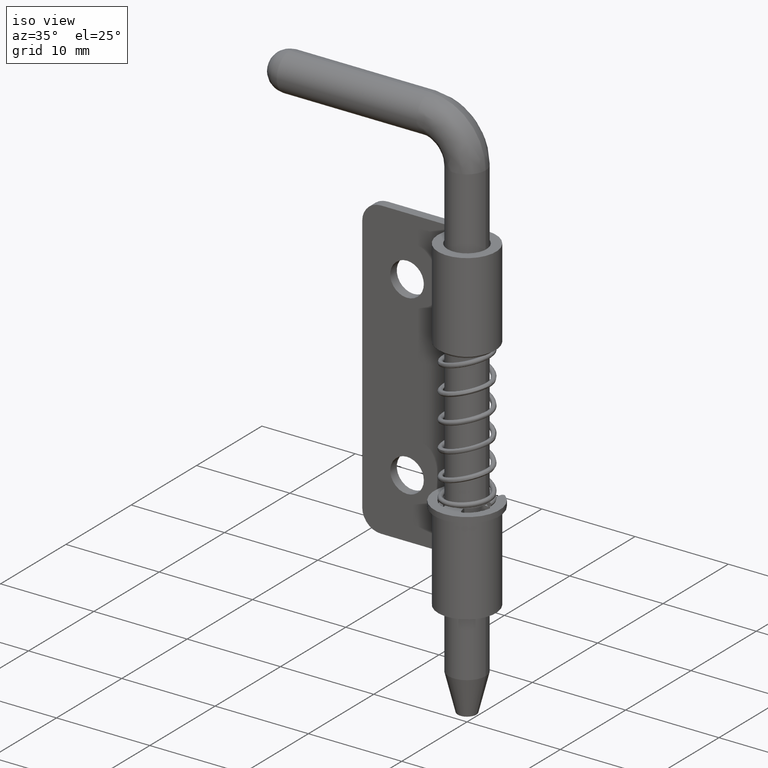
[diagram: clean part render]
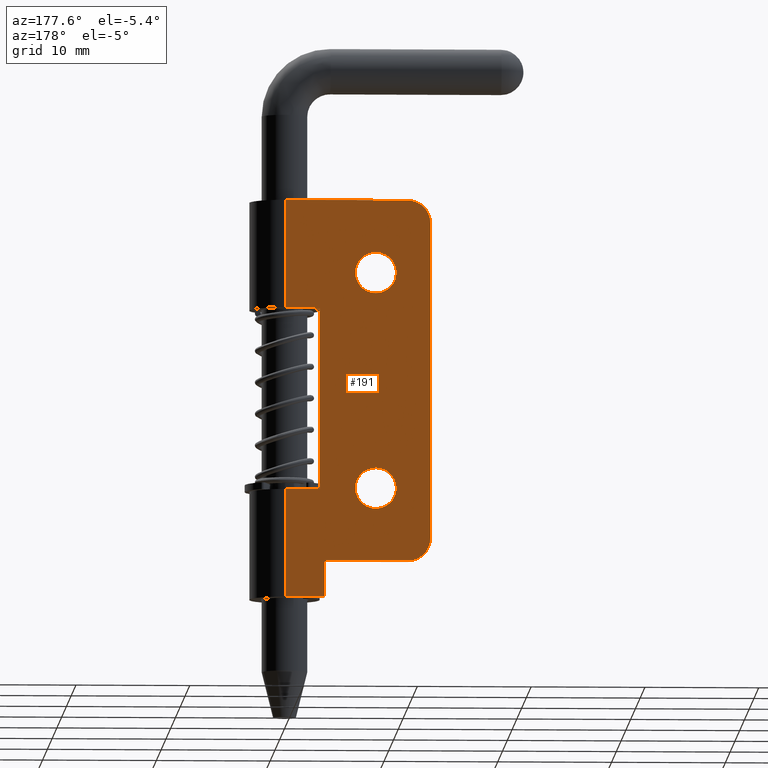
[diagram: tour spotlight — one face highlighted and labeled with its STEP entity id]
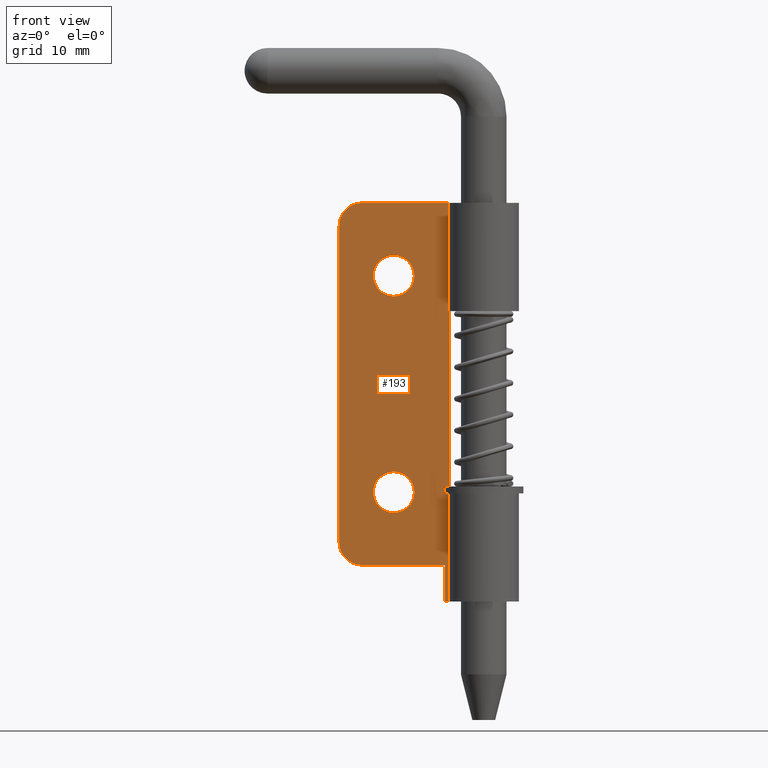
[diagram: tour spotlight — one face highlighted and labeled with its STEP entity id]
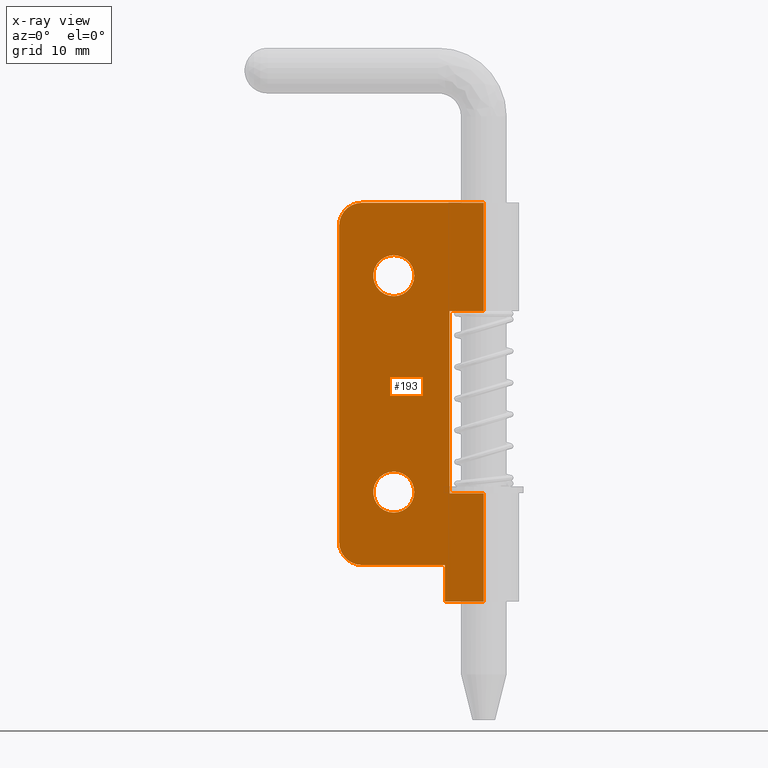
[diagram: x-ray of the same camera — body ghosted, this tour face saturated]
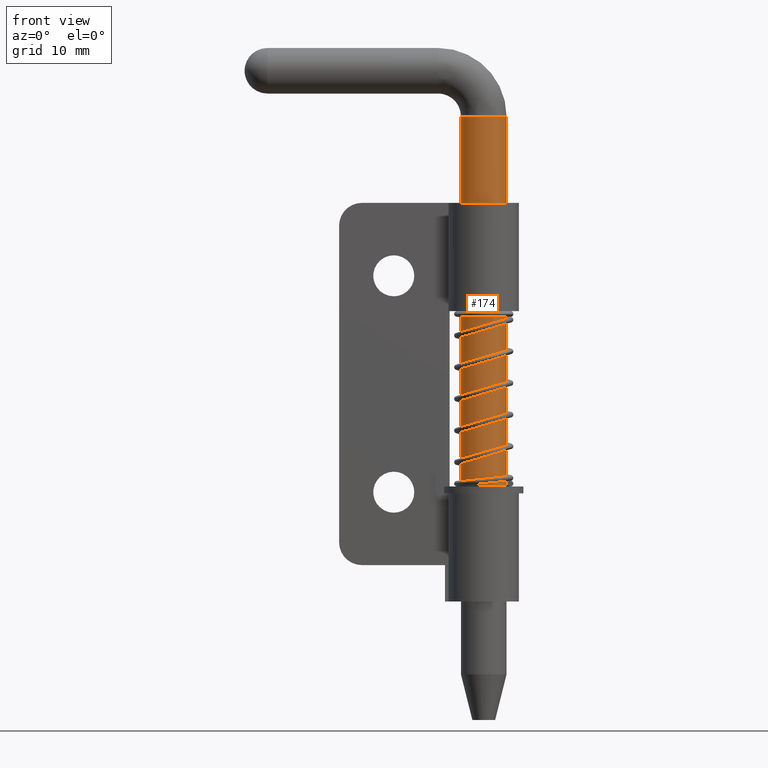
[diagram: tour spotlight — one face highlighted and labeled with its STEP entity id]
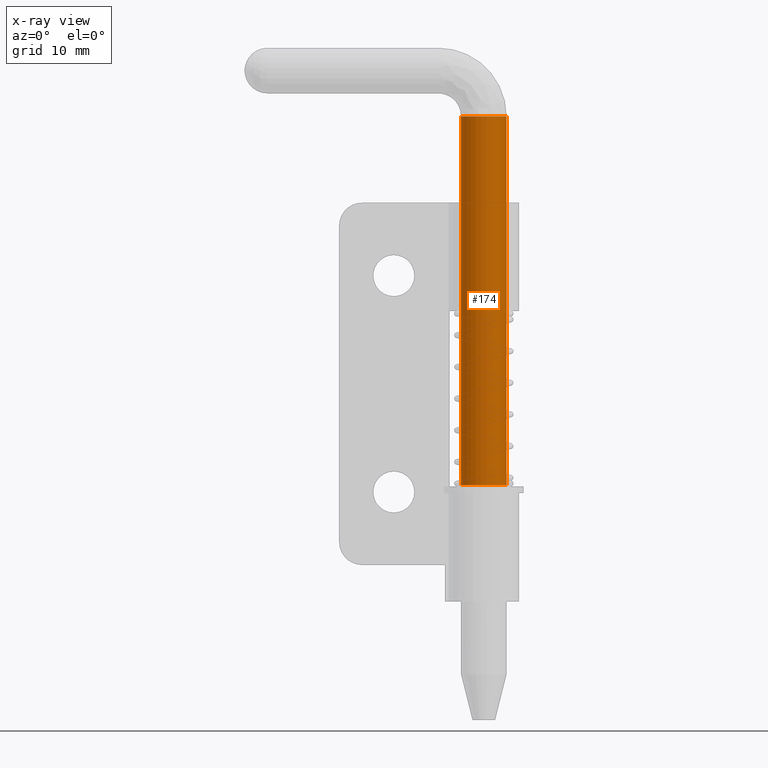
[diagram: x-ray of the same camera — body ghosted, this tour face saturated]
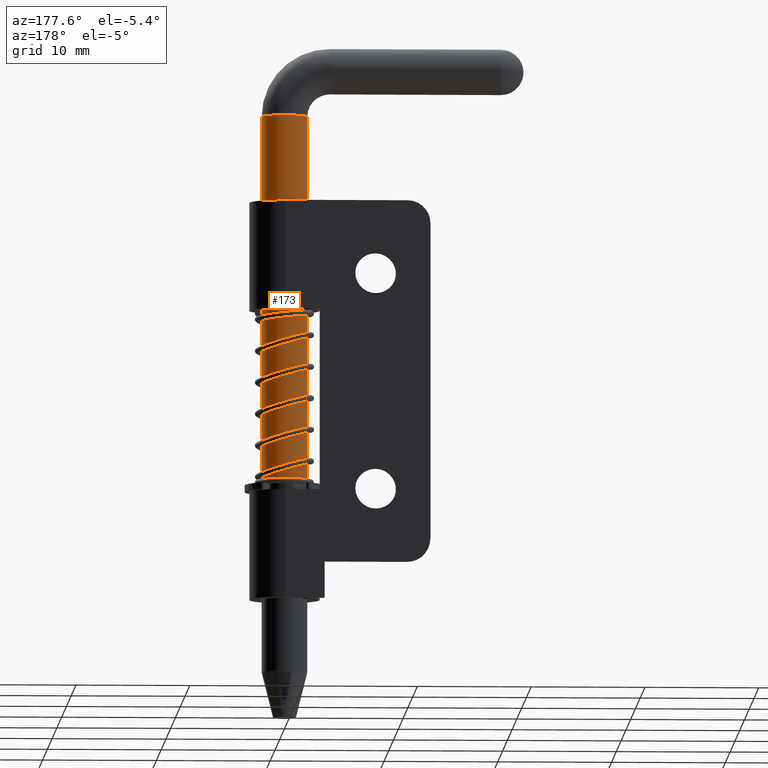
[diagram: tour spotlight — one face highlighted and labeled with its STEP entity id]
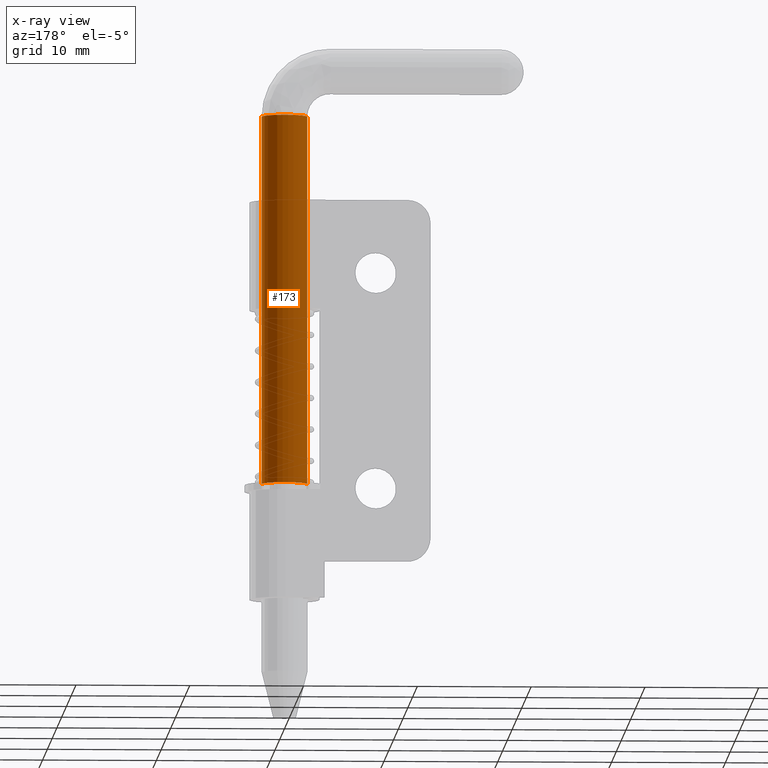
[diagram: x-ray of the same camera — body ghosted, this tour face saturated]
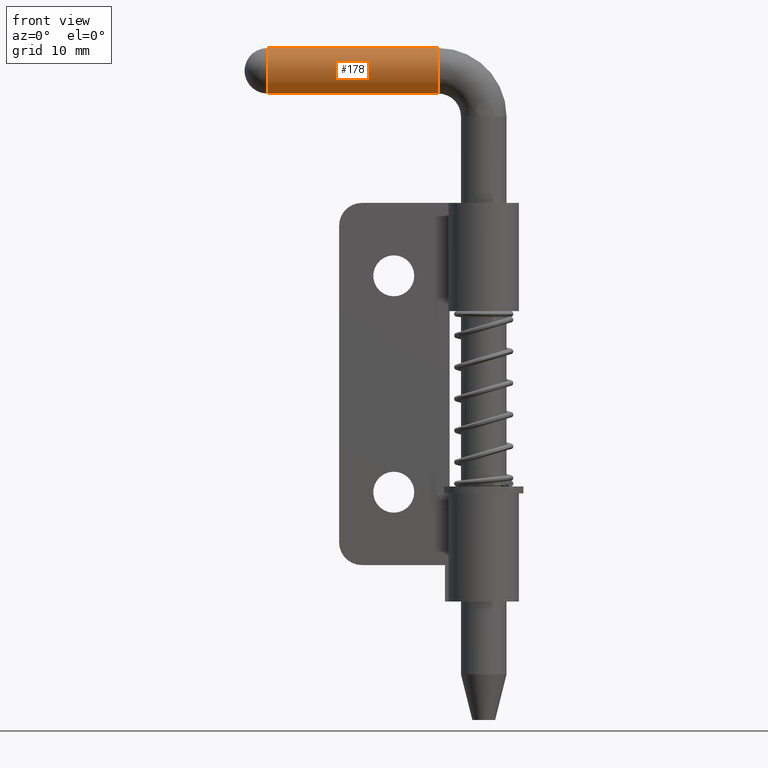
[diagram: tour spotlight — one face highlighted and labeled with its STEP entity id]
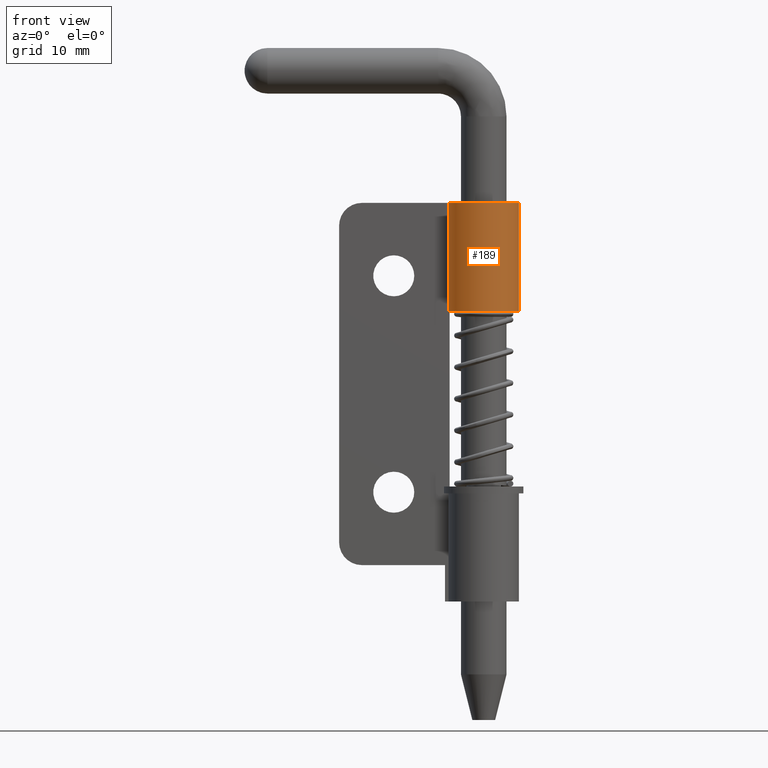
[diagram: tour spotlight — one face highlighted and labeled with its STEP entity id]
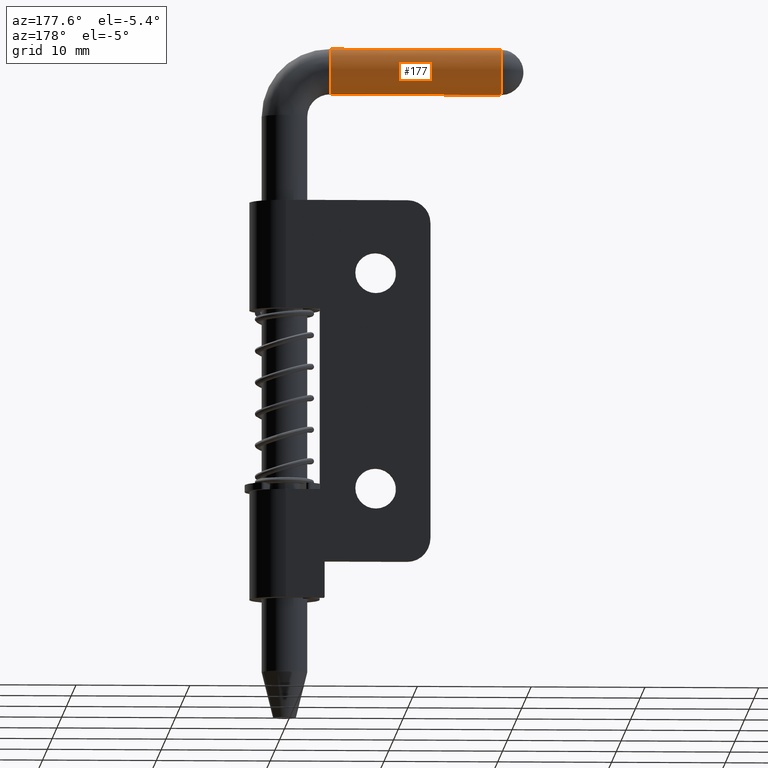
[diagram: tour spotlight — one face highlighted and labeled with its STEP entity id]
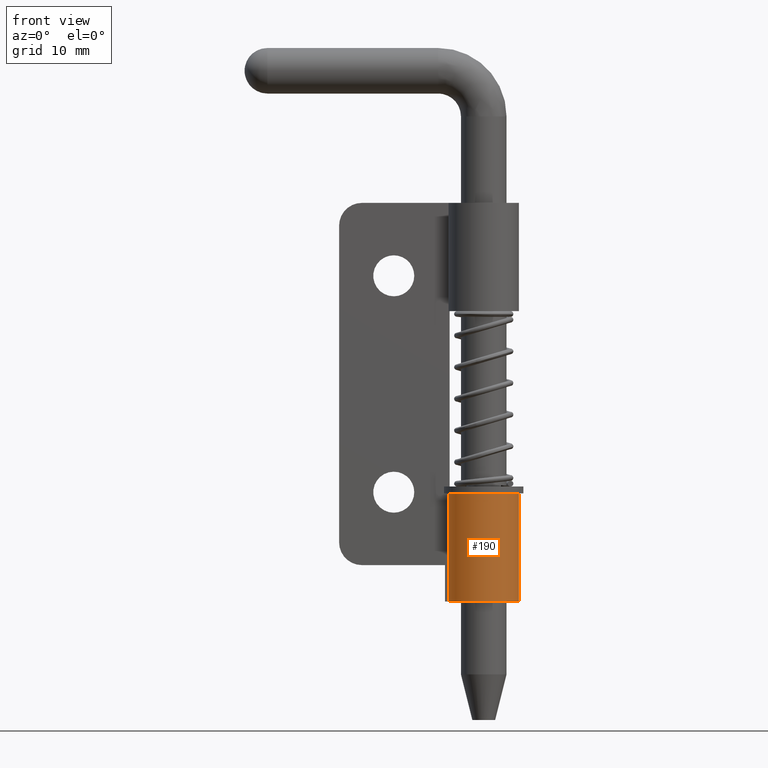
[diagram: tour spotlight — one face highlighted and labeled with its STEP entity id]
A machine part: a face-by-face anatomy tour. The part has 88 B-rep faces; the first image is the clean iso view, then the 8 largest visible faces are spotlighted one at a time (largest first), each with its STEP entity span.

Face 1 — auxiliary view, entity #191. In plain terms, the highlighted planar face has unit normal (0, -1, 0).
Definition (entity closure, byte-faithful):
#191=ADVANCED_FACE('',(#659,#660,#661),#658,.F.);
#658=PLANE('',#1400);
#659=FACE_OUTER_BOUND('',#1401,.T.);
#660=FACE_BOUND('',#1402,.T.);
#661=FACE_BOUND('',#1403,.T.);
#1397=CARTESIAN_POINT('',(-1.39700000000E+01,3.09999999991E+00,-3.50000000001E+00));
#1398=DIRECTION('',(2.96859677041E-12,-1.00000000000E+00,0.00000000000E+00));
#1399=DIRECTION('',(1.00000000000E+00,2.96859677041E-12,0.00000000000E+00));
#1400=AXIS2_PLACEMENT_3D('',#1397,#1398,#1399);
#1401=EDGE_LOOP('',(#3317,#3318,#3319,#3320,#3321,#3322,#3323,#3324,#3325,#3326,#3327,#3328));
#1402=EDGE_LOOP('',(#3329,#3330,#3331));
#1403=EDGE_LOOP('',(#3332,#3333,#3334));
#3317=ORIENTED_EDGE('',*,*,#3662,.T.);
#3318=ORIENTED_EDGE('',*,*,#3663,.T.);
#3319=ORIENTED_EDGE('',*,*,#3664,.F.);
#3320=ORIENTED_EDGE('',*,*,#3665,.T.);
#3321=ORIENTED_EDGE('',*,*,#3666,.F.);
#3322=ORIENTED_EDGE('',*,*,#3657,.T.);
#3323=ORIENTED_EDGE('',*,*,#3667,.T.);
#3324=ORIENTED_EDGE('',*,*,#3668,.T.);
#3325=ORIENTED_EDGE('',*,*,#3669,.T.);
#3326=ORIENTED_EDGE('',*,*,#3659,.T.);
#3327=ORIENTED_EDGE('',*,*,#3670,.T.);
#3328=ORIENTED_EDGE('',*,*,#3671,.T.);
#3329=ORIENTED_EDGE('',*,*,#3672,.T.);
#3330=ORIENTED_EDGE('',*,*,#3673,.T.);
#3331=ORIENTED_EDGE('',*,*,#3674,.T.);
#3332=ORIENTED_EDGE('',*,*,#3675,.T.);
#3333=ORIENTED_EDGE('',*,*,#3676,.T.);
#3334=ORIENTED_EDGE('',*,*,#3677,.T.);
#3657=EDGE_CURVE('',#4513,#4506,#4514,.T.);
#3659=EDGE_CURVE('',#4526,#4527,#4528,.T.);
#3662=EDGE_CURVE('',#4546,#4547,#4548,.T.);
#3663=EDGE_CURVE('',#4547,#4554,#4555,.T.);
#3664=EDGE_CURVE('',#4561,#4554,#4562,.T.);
#3665=EDGE_CURVE('',#4561,#4568,#4569,.T.);
#3666=EDGE_CURVE('',#4513,#4568,#4575,.T.);
#3667=EDGE_CURVE('',#4506,#4581,#4582,.T.);
#3668=EDGE_CURVE('',#4581,#4588,#4589,.T.);
#3669=EDGE_CURVE('',#4588,#4526,#4595,.T.);
#3670=EDGE_CURVE('',#4527,#4601,#4602,.T.);
#3671=EDGE_CURVE('',#4601,#4546,#4608,.T.);
#3672=EDGE_CURVE('',#4614,#4615,#4616,.T.);
#3673=EDGE_CURVE('',#4615,#4622,#4623,.T.);
#3674=EDGE_CURVE('',#4622,#4614,#4629,.T.);
#3675=EDGE_CURVE('',#4635,#4636,#4637,.T.);
#3676=EDGE_CURVE('',#4636,#4643,#4644,.T.);
#3677=EDGE_CURVE('',#4643,#4635,#4650,.T.);
#4506=VERTEX_POINT('',#5692);
#4513=VERTEX_POINT('',#5697);
#4514=LINE('',#5698,#5699);
#4526=VERTEX_POINT('',#5705);
#4527=VERTEX_POINT('',#5706);
#4528=LINE('',#5707,#5708);
#4546=VERTEX_POINT('',#5718);
#4547=VERTEX_POINT('',#5719);
#4548=LINE('',#5720,#5721);
#4554=VERTEX_POINT('',#5723);
#4555=CIRCLE('',#5727,2.00000000000E+00);
#4561=VERTEX_POINT('',#5728);
#4562=LINE('',#5729,#5730);
#4568=VERTEX_POINT('',#5732);
#4569=CIRCLE('',#5736,2.00000000000E+00);
#4575=LINE('',#5737,#5738);
#4581=VERTEX_POINT('',#5740);
#4582=LINE('',#5741,#5742);
#4588=VERTEX_POINT('',#5744);
#4589=LINE('',#5745,#5746);
#4595=LINE('',#5748,#5749);
#4601=VERTEX_POINT('',#5751);
#4602=LINE('',#5752,#5753);
#4608=LINE('',#5755,#5756);
#4614=VERTEX_POINT('',#5758);
#4615=VERTEX_POINT('',#5759);
#4616=CIRCLE('',#5763,1.80000000000E+00);
#4622=VERTEX_POINT('',#5764);
#4623=CIRCLE('',#5768,1.80000000000E+00);
#4629=CIRCLE('',#5772,1.80000000000E+00);
#4635=VERTEX_POINT('',#5773);
#4636=VERTEX_POINT('',#5774);
#4637=CIRCLE('',#5778,1.80000000000E+00);
#4643=VERTEX_POINT('',#5779);
#4644=CIRCLE('',#5783,1.80000000000E+00);
#4650=CIRCLE('',#5787,1.80000000000E+00);
#5692=CARTESIAN_POINT('',(-9.20270804006E-12,3.09999999995E+00,2.55000000000E+01));
#5697=CARTESIAN_POINT('',(-9.20227552440E-12,3.09999999995E+00,3.50000000000E+01));
#5698=CARTESIAN_POINT('',(-9.20227552440E-12,3.09999999995E+00,3.50000000000E+01));
#5699=VECTOR('',#5700,9.49999999999E+00);
#5700=DIRECTION('',(0.00000000000E+00,0.00000000000E+00,-1.00000000000E+00));
#5705=CARTESIAN_POINT('',(-9.20227435919E-12,3.09999999995E+00,9.50000000000E+00));
#5706=CARTESIAN_POINT('',(-9.20227552440E-12,3.09999999995E+00,-8.88178419700E-12));
#5707=CARTESIAN_POINT('',(-9.20227552440E-12,3.09999999995E+00,9.50000000000E+00));
#5708=VECTOR('',#5709,9.50000000001E+00);
#5709=DIRECTION('',(0.00000000000E+00,0.00000000000E+00,-1.00000000000E+00));
#5718=CARTESIAN_POINT('',(-3.40000000004E+00,3.09999999993E+00,3.20000000001E+00));
#5719=CARTESIAN_POINT('',(-1.07000000000E+01,3.09999999992E+00,3.20000000003E+00));
#5720=CARTESIAN_POINT('',(-3.40000000004E+00,3.09999999994E+00,3.20000000001E+00));
#5721=VECTOR('',#5722,7.30000000001E+00);
#5722=DIRECTION('',(-1.00000000000E+00,-2.96858428250E-12,2.84995771274E-12));
#5723=CARTESIAN_POINT('',(-1.27000000000E+01,3.09999999992E+00,5.20000000003E+00));
#5724=CARTESIAN_POINT('',(-1.07000000000E+01,3.09999999992E+00,5.20000000003E+00));
#5725=DIRECTION('',(-2.96859677041E-12,1.00000000000E+00,0.00000000000E+00));
#5726=DIRECTION('',(-1.00000000000E+00,-2.96859677041E-12,-0.00000000000E+00));
#5727=AXIS2_PLACEMENT_3D('',#5724,#5725,#5726);
#5728=CARTESIAN_POINT('',(-1.27000000000E+01,3.09999999992E+00,3.30000000000E+01));
#5729=CARTESIAN_POINT('',(-1.27000000000E+01,3.09999999992E+00,3.30000000000E+01));
#5730=VECTOR('',#5731,2.78000000000E+01);
#5731=DIRECTION('',(0.00000000000E+00,0.00000000000E+00,-1.00000000000E+00));
#5732=CARTESIAN_POINT('',(-1.07000000000E+01,3.09999999992E+00,3.50000000000E+01));
#5733=CARTESIAN_POINT('',(-1.07000000000E+01,3.09999999992E+00,3.30000000000E+01));
#5734=DIRECTION('',(-2.96859677041E-12,1.00000000000E+00,8.96831017168E-44));
#5735=DIRECTION('',(1.83690953073E-16,5.45304370047E-28,1.00000000000E+00));
#5736=AXIS2_PLACEMENT_3D('',#5733,#5734,#5735);
#5737=CARTESIAN_POINT('',(-9.20227552440E-12,3.09999999995E+00,3.50000000000E+01));
#5738=VECTOR('',#5739,1.07000000000E+01);
#5739=DIRECTION('',(-1.00000000000E+00,-2.96859110501E-12,0.00000000000E+00));
#5740=CARTESIAN_POINT('',(-2.99999999998E+00,3.09999999995E+00,2.55000000000E+01));
#5741=CARTESIAN_POINT('',(-9.20330478493E-12,3.09999999995E+00,2.55000000000E+01));
#5742=VECTOR('',#5743,2.99999999997E+00);
#5743=DIRECTION('',(-1.00000000000E+00,0.00000000000E+00,2.85164484621E-12));
#5744=CARTESIAN_POINT('',(-3.00000000002E+00,3.09999999995E+00,9.50000000001E+00));
#5745=CARTESIAN_POINT('',(-2.99999999998E+00,3.09999999995E+00,2.55000000000E+01));
#5746=VECTOR('',#5747,1.60000000000E+01);
#5747=DIRECTION('',(-2.84394729988E-12,0.00000000000E+00,-1.00000000000E+00));
#5748=CARTESIAN_POINT('',(-3.00000000002E+00,3.09999999995E+00,9.50000000001E+00));
#5749=VECTOR('',#5750,3.00000000001E+00);
#5750=DIRECTION('',(1.00000000000E+00,0.00000000000E+00,-2.83743399146E-12));
#5751=CARTESIAN_POINT('',(-3.40000000005E+00,3.09999999994E+00,-8.81072992343E-12));
#5752=CARTESIAN_POINT('',(-9.20227552440E-12,3.09999999995E+00,-8.81072992343E-12));
#5753=VECTOR('',#5754,3.40000000004E+00);
#5754=DIRECTION('',(-1.00000000000E+00,-2.96860575334E-12,0.00000000000E+00));
#5755=CARTESIAN_POINT('',(-3.40000000005E+00,3.09999999994E+00,-8.86757334229E-12));
#5756=VECTOR('',#5757,3.20000000002E+00);
#5757=DIRECTION('',(2.84217094302E-12,0.00000000000E+00,1.00000000000E+00));
#5758=CARTESIAN_POINT('',(-6.09999999999E+00,3.09999999994E+00,9.60000000015E+00));
#5759=CARTESIAN_POINT('',(-7.89999018192E+00,3.09999999993E+00,1.14000000001E+01));
#5760=CARTESIAN_POINT('',(-7.89999999999E+00,3.09999999993E+00,9.60000000015E+00));
#5761=DIRECTION('',(2.96859677041E-12,-1.00000000000E+00,0.00000000000E+00));
#5762=DIRECTION('',(1.00000000000E+00,2.96859677041E-12,-1.22460635382E-16));
#5763=AXIS2_PLACEMENT_3D('',#5760,#5761,#5762);
#5764=CARTESIAN_POINT('',(-7.90018683647E+00,3.09999999993E+00,7.80000000984E+00));
#5765=CARTESIAN_POINT('',(-7.89999999999E+00,3.09999999993E+00,9.60000000015E+00));
#5766=DIRECTION('',(2.96859677041E-12,-1.00000000000E+00,0.00000000000E+00));
#5767=DIRECTION('',(1.00000000000E+00,2.96859677041E-12,-1.22460635382E-16));
#5768=AXIS2_PLACEMENT_3D('',#5765,#5766,#5767);
#5769=CARTESIAN_POINT('',(-7.89999999999E+00,3.09999999993E+00,9.60000000015E+00));
#5770=DIRECTION('',(2.96859677041E-12,-1.00000000000E+00,0.00000000000E+00));
#5771=DIRECTION('',(1.00000000000E+00,2.96859677041E-12,-1.22460635382E-16));
#5772=AXIS2_PLACEMENT_3D('',#5769,#5770,#5771);
#5773=CARTESIAN_POINT('',(-6.09999999996E+00,3.09999999994E+00,2.86000000001E+01));
#5774=CARTESIAN_POINT('',(-7.89999018190E+00,3.09999999993E+00,3.04000000001E+01));
#5775=CARTESIAN_POINT('',(-7.89999999996E+00,3.09999999993E+00,2.86000000001E+01));
#5776=DIRECTION('',(2.96859677041E-12,-1.00000000000E+00,0.00000000000E+00));
#5777=DIRECTION('',(1.00000000000E+00,2.96859677041E-12,-1.22460635382E-16));
#5778=AXIS2_PLACEMENT_3D('',#5775,#5776,#5777);
#5779=CARTESIAN_POINT('',(-7.90018683645E+00,3.09999999993E+00,2.68000000098E+01));
#5780=CARTESIAN_POINT('',(-7.89999999996E+00,3.09999999993E+00,2.86000000001E+01));
#5781=DIRECTION('',(2.96859677041E-12,-1.00000000000E+00,0.00000000000E+00));
#5782=DIRECTION('',(1.00000000000E+00,2.96859677041E-12,-1.22460635382E-16));
#5783=AXIS2_PLACEMENT_3D('',#5780,#5781,#5782);
#5784=CARTESIAN_POINT('',(-7.89999999996E+00,3.09999999993E+00,2.86000000001E+01));
#5785=DIRECTION('',(2.96859677041E-12,-1.00000000000E+00,0.00000000000E+00));
#5786=DIRECTION('',(1.00000000000E+00,2.96859677041E-12,-1.22460635382E-16));
#5787=AXIS2_PLACEMENT_3D('',#5784,#5785,#5786);

Face 2 — front view, entity #193. An x-ray twin of the same camera follows (body ghosted, this face saturated) — the face is partly hidden behind the body. In plain terms, the highlighted planar face has unit normal (-0, 1, 0).
Definition (entity closure, byte-faithful):
#193=ADVANCED_FACE('',(#681,#682,#683),#680,.F.);
#680=PLANE('',#1412);
#681=FACE_OUTER_BOUND('',#1413,.T.);
#682=FACE_BOUND('',#1414,.T.);
#683=FACE_BOUND('',#1415,.T.);
#1409=CARTESIAN_POINT('',(1.27000000000E+00,2.09999999996E+00,-3.50000000001E+00));
#1410=DIRECTION('',(-2.96859677041E-12,1.00000000000E+00,0.00000000000E+00));
#1411=DIRECTION('',(-1.00000000000E+00,-2.96859677041E-12,0.00000000000E+00));
#1412=AXIS2_PLACEMENT_3D('',#1409,#1410,#1411);
#1413=EDGE_LOOP('',(#3339,#3340,#3341,#3342,#3343,#3344,#3345,#3346,#3347,#3348,#3349,#3350));
#1414=EDGE_LOOP('',(#3351,#3352,#3353));
#1415=EDGE_LOOP('',(#3354,#3355,#3356));
#3339=ORIENTED_EDGE('',*,*,#3679,.T.);
#3340=ORIENTED_EDGE('',*,*,#3681,.T.);
#3341=ORIENTED_EDGE('',*,*,#3682,.F.);
#3342=ORIENTED_EDGE('',*,*,#3683,.F.);
#3343=ORIENTED_EDGE('',*,*,#3684,.T.);
#3344=ORIENTED_EDGE('',*,*,#3651,.F.);
#3345=ORIENTED_EDGE('',*,*,#3685,.F.);
#3346=ORIENTED_EDGE('',*,*,#3686,.F.);
#3347=ORIENTED_EDGE('',*,*,#3687,.F.);
#3348=ORIENTED_EDGE('',*,*,#3646,.F.);
#3349=ORIENTED_EDGE('',*,*,#3688,.F.);
#3350=ORIENTED_EDGE('',*,*,#3689,.T.);
#3351=ORIENTED_EDGE('',*,*,#3690,.F.);
#3352=ORIENTED_EDGE('',*,*,#3691,.F.);
#3353=ORIENTED_EDGE('',*,*,#3692,.F.);
#3354=ORIENTED_EDGE('',*,*,#3693,.F.);
#3355=ORIENTED_EDGE('',*,*,#3694,.F.);
#3356=ORIENTED_EDGE('',*,*,#3695,.F.);
#3646=EDGE_CURVE('',#4438,#4439,#4440,.T.);
#3651=EDGE_CURVE('',#4466,#4473,#4474,.T.);
#3679=EDGE_CURVE('',#4663,#4656,#4664,.T.);
#3681=EDGE_CURVE('',#4656,#4676,#4677,.T.);
#3682=EDGE_CURVE('',#4683,#4676,#4684,.T.);
#3683=EDGE_CURVE('',#4690,#4683,#4691,.T.);
#3684=EDGE_CURVE('',#4690,#4473,#4697,.T.);
#3685=EDGE_CURVE('',#4703,#4466,#4704,.T.);
#3686=EDGE_CURVE('',#4710,#4703,#4711,.T.);
#3687=EDGE_CURVE('',#4439,#4710,#4717,.T.);
#3688=EDGE_CURVE('',#4723,#4438,#4724,.T.);
#3689=EDGE_CURVE('',#4723,#4663,#4730,.T.);
#3690=EDGE_CURVE('',#4736,#4737,#4738,.T.);
#3691=EDGE_CURVE('',#4744,#4736,#4745,.T.);
#3692=EDGE_CURVE('',#4737,#4744,#4751,.T.);
#3693=EDGE_CURVE('',#4757,#4758,#4759,.T.);
#3694=EDGE_CURVE('',#4765,#4757,#4766,.T.);
#3695=EDGE_CURVE('',#4758,#4765,#4772,.T.);
#4438=VERTEX_POINT('',#5650);
#4439=VERTEX_POINT('',#5651);
#4440=LINE('',#5652,#5653);
#4466=VERTEX_POINT('',#5668);
#4473=VERTEX_POINT('',#5673);
#4474=LINE('',#5674,#5675);
#4656=VERTEX_POINT('',#5788);
#4663=VERTEX_POINT('',#5792);
#4664=LINE('',#5793,#5794);
#4676=VERTEX_POINT('',#5799);
#4677=CIRCLE('',#5803,2.00000000000E+00);
#4683=VERTEX_POINT('',#5804);
#4684=LINE('',#5805,#5806);
#4690=VERTEX_POINT('',#5808);
#4691=LINE('',#5809,#5810);
#4697=LINE('',#5812,#5813);
#4703=VERTEX_POINT('',#5815);
#4704=LINE('',#5816,#5817);
#4710=VERTEX_POINT('',#5819);
#4711=LINE('',#5820,#5821);
#4717=LINE('',#5823,#5824);
#4723=VERTEX_POINT('',#5826);
#4724=LINE('',#5827,#5828);
#4730=CIRCLE('',#5833,2.00000000000E+00);
#4736=VERTEX_POINT('',#5834);
#4737=VERTEX_POINT('',#5835);
#4738=CIRCLE('',#5839,1.80000000000E+00);
#4744=VERTEX_POINT('',#5840);
#4745=CIRCLE('',#5844,1.80000000000E+00);
#4751=CIRCLE('',#5848,1.80000000000E+00);
#4757=VERTEX_POINT('',#5849);
#4758=VERTEX_POINT('',#5850);
#4759=CIRCLE('',#5854,1.80000000000E+00);
#4765=VERTEX_POINT('',#5855);
#4766=CIRCLE('',#5859,1.80000000000E+00);
#4772=CIRCLE('',#5863,1.80000000000E+00);
#5650=CARTESIAN_POINT('',(-5.91171556152E-12,2.09999999995E+00,3.50000000000E+01));
#5651=CARTESIAN_POINT('',(-5.91193760613E-12,2.09999999995E+00,2.55000000000E+01));
#5652=CARTESIAN_POINT('',(-5.91171556152E-12,2.09999999995E+00,3.50000000000E+01));
#5653=VECTOR('',#5654,9.49999999999E+00);
#5654=DIRECTION('',(0.00000000000E+00,0.00000000000E+00,-1.00000000000E+00));
#5668=CARTESIAN_POINT('',(0.00000000000E+00,2.09999999998E+00,9.50000000001E+00));
#5673=CARTESIAN_POINT('',(-5.91171556152E-12,2.09999999995E+00,-8.88178419700E-12));
#5674=CARTESIAN_POINT('',(-5.91171556152E-12,2.09999999995E+00,9.50000000001E+00));
#5675=VECTOR('',#5676,9.50000000001E+00);
#5676=DIRECTION('',(0.00000000000E+00,0.00000000000E+00,-1.00000000000E+00));
#5788=CARTESIAN_POINT('',(-1.27000000000E+01,2.09999999992E+00,5.20000000003E+00));
#5792=CARTESIAN_POINT('',(-1.27000000000E+01,2.09999999992E+00,3.30000000000E+01));
#5793=CARTESIAN_POINT('',(-1.27000000000E+01,2.09999999992E+00,3.30000000000E+01));
#5794=VECTOR('',#5795,2.78000000000E+01);
#5795=DIRECTION('',(0.00000000000E+00,0.00000000000E+00,-1.00000000000E+00));
#5799=CARTESIAN_POINT('',(-1.07000000000E+01,2.09999999992E+00,3.20000000003E+00));
#5800=CARTESIAN_POINT('',(-1.07000000000E+01,2.09999999992E+00,5.20000000003E+00));
#5801=DIRECTION('',(2.96859677041E-12,-1.00000000000E+00,-0.00000000000E+00));
#5802=DIRECTION('',(1.00000000000E+00,2.96859677041E-12,-0.00000000000E+00));
#5803=AXIS2_PLACEMENT_3D('',#5800,#5801,#5802);
#5804=CARTESIAN_POINT('',(-3.40000000004E+00,2.09999999992E+00,3.20000000001E+00));
#5805=CARTESIAN_POINT('',(-3.40000000004E+00,2.09999999992E+00,3.20000000001E+00));
#5806=VECTOR('',#5807,7.30000000001E+00);
#5807=DIRECTION('',(-1.00000000000E+00,0.00000000000E+00,2.84995771274E-12));
#5808=CARTESIAN_POINT('',(-3.40000000005E+00,2.09999999992E+00,9.69180291577E-12));
#5809=CARTESIAN_POINT('',(-3.40000000005E+00,2.09999999992E+00,9.69180291577E-12));
#5810=VECTOR('',#5811,3.20000000000E+00);
#5811=DIRECTION('',(2.84217094304E-12,0.00000000000E+00,1.00000000000E+00));
#5812=CARTESIAN_POINT('',(-3.40000000005E+00,2.09999999994E+00,-8.81072992343E-12));
#5813=VECTOR('',#5814,3.40000000004E+00);
#5814=DIRECTION('',(1.00000000000E+00,2.96860575334E-12,0.00000000000E+00));
#5815=CARTESIAN_POINT('',(-3.00000000002E+00,2.09999999996E+00,9.50000000001E+00));
#5816=CARTESIAN_POINT('',(-3.00000000002E+00,2.09999999995E+00,9.50000000001E+00));
#5817=VECTOR('',#5818,3.00000000002E+00);
#5818=DIRECTION('',(1.00000000000E+00,2.96873636783E-12,-2.83743399145E-12));
#5819=CARTESIAN_POINT('',(-2.99999999998E+00,2.09999999996E+00,2.55000000000E+01));
#5820=CARTESIAN_POINT('',(-2.99999999998E+00,2.09999999995E+00,2.55000000000E+01));
#5821=VECTOR('',#5822,1.60000000000E+01);
#5822=DIRECTION('',(-2.84394729988E-12,0.00000000000E+00,-1.00000000000E+00));
#5823=CARTESIAN_POINT('',(-5.91171556152E-12,2.09999999995E+00,2.55000000000E+01));
#5824=VECTOR('',#5825,2.99999999997E+00);
#5825=DIRECTION('',(-1.00000000000E+00,-2.96873636788E-12,2.85164484621E-12));
#5826=CARTESIAN_POINT('',(-1.07000000000E+01,2.09999999992E+00,3.50000000000E+01));
#5827=CARTESIAN_POINT('',(-1.07000000000E+01,2.09999999992E+00,3.50000000000E+01));
#5828=VECTOR('',#5829,1.07000000000E+01);
#5829=DIRECTION('',(1.00000000000E+00,2.96859110501E-12,0.00000000000E+00));
#5830=CARTESIAN_POINT('',(-1.07000000000E+01,2.09999999992E+00,3.30000000000E+01));
#5831=DIRECTION('',(2.96859677041E-12,-1.00000000000E+00,-0.00000000000E+00));
#5832=DIRECTION('',(1.00000000000E+00,2.96859677041E-12,-0.00000000000E+00));
#5833=AXIS2_PLACEMENT_3D('',#5830,#5831,#5832);
#5834=CARTESIAN_POINT('',(-7.90018683647E+00,2.09999999992E+00,7.80000000984E+00));
#5835=CARTESIAN_POINT('',(-6.09999999999E+00,2.09999999992E+00,9.60000000015E+00));
#5836=CARTESIAN_POINT('',(-7.89999999999E+00,2.09999999992E+00,9.60000000015E+00));
#5837=DIRECTION('',(0.00000000000E+00,-1.00000000000E+00,0.00000000000E+00));
#5838=DIRECTION('',(1.00000000000E+00,0.00000000000E+00,-1.22460635382E-16));
#5839=AXIS2_PLACEMENT_3D('',#5836,#5837,#5838);
#5840=CARTESIAN_POINT('',(-7.89999018192E+00,2.09999999992E+00,1.14000000001E+01));
#5841=CARTESIAN_POINT('',(-7.89999999999E+00,2.09999999992E+00,9.60000000015E+00));
#5842=DIRECTION('',(0.00000000000E+00,-1.00000000000E+00,0.00000000000E+00));
#5843=DIRECTION('',(1.00000000000E+00,0.00000000000E+00,-1.22460635382E-16));
#5844=AXIS2_PLACEMENT_3D('',#5841,#5842,#5843);
#5845=CARTESIAN_POINT('',(-7.89999999999E+00,2.09999999992E+00,9.60000000015E+00));
#5846=DIRECTION('',(0.00000000000E+00,-1.00000000000E+00,0.00000000000E+00));
#5847=DIRECTION('',(1.00000000000E+00,0.00000000000E+00,-1.22460635382E-16));
#5848=AXIS2_PLACEMENT_3D('',#5845,#5846,#5847);
#5849=CARTESIAN_POINT('',(-7.90018683645E+00,2.09999999992E+00,2.68000000098E+01));
#5850=CARTESIAN_POINT('',(-6.09999999996E+00,2.09999999992E+00,2.86000000001E+01));
#5851=CARTESIAN_POINT('',(-7.89999999996E+00,2.09999999992E+00,2.86000000001E+01));
#5852=DIRECTION('',(0.00000000000E+00,-1.00000000000E+00,0.00000000000E+00));
#5853=DIRECTION('',(1.00000000000E+00,0.00000000000E+00,-1.22460635382E-16));
#5854=AXIS2_PLACEMENT_3D('',#5851,#5852,#5853);
#5855=CARTESIAN_POINT('',(-7.89999018190E+00,2.09999999992E+00,3.04000000001E+01));
#5856=CARTESIAN_POINT('',(-7.89999999996E+00,2.09999999992E+00,2.86000000001E+01));
#5857=DIRECTION('',(0.00000000000E+00,-1.00000000000E+00,0.00000000000E+00));
#5858=DIRECTION('',(1.00000000000E+00,0.00000000000E+00,-1.22460635382E-16));
#5859=AXIS2_PLACEMENT_3D('',#5856,#5857,#5858);
#5860=CARTESIAN_POINT('',(-7.89999999996E+00,2.09999999992E+00,2.86000000001E+01));
#5861=DIRECTION('',(0.00000000000E+00,-1.00000000000E+00,0.00000000000E+00));
#5862=DIRECTION('',(1.00000000000E+00,0.00000000000E+00,-1.22460635382E-16));
#5863=AXIS2_PLACEMENT_3D('',#5860,#5861,#5862);

Face 3 — front view, entity #174. An x-ray twin of the same camera follows (body ghosted, this face saturated) — the face is partly hidden behind the body. In plain terms, the highlighted cylindrical surface (edge-blend (fillet) strip) has radius 2 mm, axis along (0, 0, 1).
Definition (entity closure, byte-faithful):
#174=ADVANCED_FACE('',(#489),#488,.T.);
#488=CYLINDRICAL_SURFACE('',#1251,2.00000000000E+00);
#489=FACE_OUTER_BOUND('',#1252,.T.);
#1248=CARTESIAN_POINT('',(0.00000000000E+00,0.00000000000E+00,0.00000000000E+00));
#1249=DIRECTION('',(0.00000000000E+00,-0.00000000000E+00,1.00000000000E+00));
#1250=DIRECTION('',(1.00000000000E+00,0.00000000000E+00,0.00000000000E+00));
#1251=AXIS2_PLACEMENT_3D('',#1248,#1249,#1250);
#1252=EDGE_LOOP('',(#3247,#3248,#3249,#3250));
#3247=ORIENTED_EDGE('',*,*,#3562,.F.);
#3248=ORIENTED_EDGE('',*,*,#3623,.T.);
#3249=ORIENTED_EDGE('',*,*,#3625,.T.);
#3250=ORIENTED_EDGE('',*,*,#3624,.F.);
#3562=EDGE_CURVE('',#3880,#3879,#3887,.T.);
#3623=EDGE_CURVE('',#3880,#4282,#4289,.T.);
#3624=EDGE_CURVE('',#3879,#4281,#4295,.T.);
#3625=EDGE_CURVE('',#4282,#4281,#4301,.T.);
#3879=VERTEX_POINT('',#5313);
#3880=VERTEX_POINT('',#5314);
#3887=CIRCLE('',#5322,2.00000000000E+00);
#4281=VERTEX_POINT('',#5563);
#4282=VERTEX_POINT('',#5564);
#4289=(BOUNDED_CURVE() B_SPLINE_CURVE(1,(#5569,#5570),.UNSPECIFIED.,.F.,.F.) B_SPLINE_CURVE_WITH_KNOTS((2,2),(8.33333335810E-02,9.16666666255E-01),.UNSPECIFIED.) CURVE() GEOMETRIC_REPRESENTATION_ITEM() RATIONAL_B_SPLINE_CURVE((1.00000000000E+00,1.00000000000E+00)) REPRESENTATION_ITEM('') );
#4295=(BOUNDED_CURVE() B_SPLINE_CURVE(1,(#5571,#5572),.UNSPECIFIED.,.F.,.F.) B_SPLINE_CURVE_WITH_KNOTS((2,2),(8.33333333333E-02,9.16666666667E-01),.UNSPECIFIED.) CURVE() GEOMETRIC_REPRESENTATION_ITEM() RATIONAL_B_SPLINE_CURVE((7.50000000000E-01,7.50000000000E-01)) REPRESENTATION_ITEM('') );
#4301=CIRCLE('',#5576,2.00000000000E+00);
#5313=CARTESIAN_POINT('',(-2.00000000000E+00,0.00000000000E+00,-3.24000000000E+01));
#5314=CARTESIAN_POINT('',(2.00000000000E+00,2.22044604925E-16,-3.24000000000E+01));
#5319=CARTESIAN_POINT('',(0.00000000000E+00,0.00000000000E+00,-3.24000000000E+01));
#5320=DIRECTION('',(-0.00000000000E+00,0.00000000000E+00,-1.00000000000E+00));
#5321=DIRECTION('',(-1.00000000000E+00,-1.22460635382E-16,0.00000000000E+00));
#5322=AXIS2_PLACEMENT_3D('',#5319,#5320,#5321);
#5563=CARTESIAN_POINT('',(-2.00000000000E+00,-2.22044604925E-16,0.00000000000E+00));
#5564=CARTESIAN_POINT('',(2.00000000000E+00,0.00000000000E+00,0.00000000000E+00));
#5569=CARTESIAN_POINT('',(2.00000000000E+00,0.00000000000E+00,-3.23999999904E+01));
#5570=CARTESIAN_POINT('',(2.00000000000E+00,0.00000000000E+00,-1.59906461406E-08));
#5571=CARTESIAN_POINT('',(-2.00000000000E+00,-7.40148683083E-17,-3.24000000000E+01));
#5572=CARTESIAN_POINT('',(-2.00000000000E+00,-7.40148683083E-17,5.92118946467E-16));
#5573=CARTESIAN_POINT('',(0.00000000000E+00,0.00000000000E+00,0.00000000000E+00));
#5574=DIRECTION('',(0.00000000000E+00,0.00000000000E+00,-1.00000000000E+00));
#5575=DIRECTION('',(1.00000000000E+00,1.22460635382E-16,0.00000000000E+00));
#5576=AXIS2_PLACEMENT_3D('',#5573,#5574,#5575);

Face 4 — auxiliary view, entity #173. An x-ray twin of the same camera follows (body ghosted, this face saturated) — the face is partly hidden behind the body. In plain terms, the highlighted cylindrical surface (edge-blend (fillet) strip) has radius 2 mm, axis along (0, 0, 1).
Definition (entity closure, byte-faithful):
#173=ADVANCED_FACE('',(#479),#478,.T.);
#478=CYLINDRICAL_SURFACE('',#1246,2.00000000000E+00);
#479=FACE_OUTER_BOUND('',#1247,.T.);
#1243=CARTESIAN_POINT('',(0.00000000000E+00,0.00000000000E+00,0.00000000000E+00));
#1244=DIRECTION('',(0.00000000000E+00,-0.00000000000E+00,1.00000000000E+00));
#1245=DIRECTION('',(1.00000000000E+00,0.00000000000E+00,0.00000000000E+00));
#1246=AXIS2_PLACEMENT_3D('',#1243,#1244,#1245);
#1247=EDGE_LOOP('',(#3243,#3244,#3245,#3246));
#3243=ORIENTED_EDGE('',*,*,#3622,.T.);
#3244=ORIENTED_EDGE('',*,*,#3623,.F.);
#3245=ORIENTED_EDGE('',*,*,#3561,.F.);
#3246=ORIENTED_EDGE('',*,*,#3624,.T.);
#3561=EDGE_CURVE('',#3879,#3880,#3881,.T.);
#3622=EDGE_CURVE('',#4281,#4282,#4283,.T.);
#3623=EDGE_CURVE('',#3880,#4282,#4289,.T.);
#3624=EDGE_CURVE('',#3879,#4281,#4295,.T.);
#3879=VERTEX_POINT('',#5313);
#3880=VERTEX_POINT('',#5314);
#3881=CIRCLE('',#5318,2.00000000000E+00);
#4281=VERTEX_POINT('',#5563);
#4282=VERTEX_POINT('',#5564);
#4283=CIRCLE('',#5568,2.00000000000E+00);
#4289=(BOUNDED_CURVE() B_SPLINE_CURVE(1,(#5569,#5570),.UNSPECIFIED.,.F.,.F.) B_SPLINE_CURVE_WITH_KNOTS((2,2),(8.33333335810E-02,9.16666666255E-01),.UNSPECIFIED.) CURVE() GEOMETRIC_REPRESENTATION_ITEM() RATIONAL_B_SPLINE_CURVE((1.00000000000E+00,1.00000000000E+00)) REPRESENTATION_ITEM('') );
#4295=(BOUNDED_CURVE() B_SPLINE_CURVE(1,(#5571,#5572),.UNSPECIFIED.,.F.,.F.) B_SPLINE_CURVE_WITH_KNOTS((2,2),(8.33333333333E-02,9.16666666667E-01),.UNSPECIFIED.) CURVE() GEOMETRIC_REPRESENTATION_ITEM() RATIONAL_B_SPLINE_CURVE((7.50000000000E-01,7.50000000000E-01)) REPRESENTATION_ITEM('') );
#5313=CARTESIAN_POINT('',(-2.00000000000E+00,0.00000000000E+00,-3.24000000000E+01));
#5314=CARTESIAN_POINT('',(2.00000000000E+00,2.22044604925E-16,-3.24000000000E+01));
#5315=CARTESIAN_POINT('',(0.00000000000E+00,0.00000000000E+00,-3.24000000000E+01));
#5316=DIRECTION('',(-0.00000000000E+00,0.00000000000E+00,-1.00000000000E+00));
#5317=DIRECTION('',(-1.00000000000E+00,-1.22460635382E-16,0.00000000000E+00));
#5318=AXIS2_PLACEMENT_3D('',#5315,#5316,#5317);
#5563=CARTESIAN_POINT('',(-2.00000000000E+00,-2.22044604925E-16,0.00000000000E+00));
#5564=CARTESIAN_POINT('',(2.00000000000E+00,0.00000000000E+00,0.00000000000E+00));
#5565=CARTESIAN_POINT('',(0.00000000000E+00,0.00000000000E+00,0.00000000000E+00));
#5566=DIRECTION('',(0.00000000000E+00,0.00000000000E+00,-1.00000000000E+00));
#5567=DIRECTION('',(1.00000000000E+00,1.22460635382E-16,0.00000000000E+00));
#5568=AXIS2_PLACEMENT_3D('',#5565,#5566,#5567);
#5569=CARTESIAN_POINT('',(2.00000000000E+00,0.00000000000E+00,-3.23999999904E+01));
#5570=CARTESIAN_POINT('',(2.00000000000E+00,0.00000000000E+00,-1.59906461406E-08));
#5571=CARTESIAN_POINT('',(-2.00000000000E+00,-7.40148683083E-17,-3.24000000000E+01));
#5572=CARTESIAN_POINT('',(-2.00000000000E+00,-7.40148683083E-17,5.92118946467E-16));

Face 5 — front view, entity #178. In plain terms, the highlighted cylindrical surface (edge-blend (fillet) strip) has radius 2 mm, axis along (1, 0, 0).
Definition (entity closure, byte-faithful):
#178=ADVANCED_FACE('',(#529),#528,.T.);
#528=CYLINDRICAL_SURFACE('',#1323,2.00000000011E+00);
#529=FACE_OUTER_BOUND('',#1324,.T.);
#1320=CARTESIAN_POINT('',(0.00000000000E+00,0.00000000000E+00,4.00000000000E+00));
#1321=DIRECTION('',(1.00000000000E+00,-0.00000000000E+00,-0.00000000000E+00));
#1322=DIRECTION('',(0.00000000000E+00,0.00000000000E+00,-1.00000000000E+00));
#1323=AXIS2_PLACEMENT_3D('',#1320,#1321,#1322);
#1324=EDGE_LOOP('',(#3263,#3264,#3265,#3266));
#3263=ORIENTED_EDGE('',*,*,#3633,.F.);
#3264=ORIENTED_EDGE('',*,*,#3630,.T.);
#3265=ORIENTED_EDGE('',*,*,#3626,.T.);
#3266=ORIENTED_EDGE('',*,*,#3632,.F.);
#3626=EDGE_CURVE('',#4307,#4308,#4309,.T.);
#3630=EDGE_CURVE('',#4333,#4307,#4334,.T.);
#3632=EDGE_CURVE('',#4340,#4308,#4347,.T.);
#3633=EDGE_CURVE('',#4333,#4340,#4353,.T.);
#4307=VERTEX_POINT('',#5577);
#4308=VERTEX_POINT('',#5578);
#4309=CIRCLE('',#5582,2.00000000011E+00);
#4333=VERTEX_POINT('',#5595);
#4334=(BOUNDED_CURVE() B_SPLINE_CURVE(1,(#5596,#5597),.UNSPECIFIED.,.F.,.F.) B_SPLINE_CURVE_WITH_KNOTS((2,2),(8.33333328360E-02,9.16666666871E-01),.UNSPECIFIED.) CURVE() GEOMETRIC_REPRESENTATION_ITEM() RATIONAL_B_SPLINE_CURVE((1.00000000000E+00,1.00000000000E+00)) REPRESENTATION_ITEM('') );
#4340=VERTEX_POINT('',#5598);
#4347=(BOUNDED_CURVE() B_SPLINE_CURVE(1,(#5603,#5604),.UNSPECIFIED.,.F.,.F.) B_SPLINE_CURVE_WITH_KNOTS((2,2),(8.33333333333E-02,9.16666666667E-01),.UNSPECIFIED.) CURVE() GEOMETRIC_REPRESENTATION_ITEM() RATIONAL_B_SPLINE_CURVE((7.50000000000E-01,7.50000000000E-01)) REPRESENTATION_ITEM('') );
#4353=CIRCLE('',#5608,2.00000000011E+00);
#5577=CARTESIAN_POINT('',(-4.00000000000E+00,2.22044604925E-16,1.99999999989E+00));
#5578=CARTESIAN_POINT('',(-4.00000000000E+00,0.00000000000E+00,6.00000000011E+00));
#5579=CARTESIAN_POINT('',(-4.00000000000E+00,0.00000000000E+00,4.00000000000E+00));
#5580=DIRECTION('',(-1.00000000000E+00,0.00000000000E+00,0.00000000000E+00));
#5581=DIRECTION('',(0.00000000000E+00,-1.22460635382E-16,1.00000000000E+00));
#5582=AXIS2_PLACEMENT_3D('',#5579,#5580,#5581);
#5595=CARTESIAN_POINT('',(-1.90000000000E+01,2.22044604925E-16,1.99999999989E+00));
#5596=CARTESIAN_POINT('',(-1.90000000090E+01,0.00000000000E+00,1.99999999989E+00));
#5597=CARTESIAN_POINT('',(-3.99999999633E+00,0.00000000000E+00,1.99999999989E+00));
#5598=CARTESIAN_POINT('',(-1.90000000000E+01,0.00000000000E+00,6.00000000011E+00));
#5603=CARTESIAN_POINT('',(-1.90000000000E+01,-7.40148683083E-17,6.00000000011E+00));
#5604=CARTESIAN_POINT('',(-4.00000000000E+00,-7.40148683083E-17,6.00000000011E+00));
#5605=CARTESIAN_POINT('',(-1.90000000000E+01,0.00000000000E+00,4.00000000000E+00));
#5606=DIRECTION('',(-1.00000000000E+00,0.00000000000E+00,0.00000000000E+00));
#5607=DIRECTION('',(0.00000000000E+00,-1.22460635382E-16,1.00000000000E+00));
#5608=AXIS2_PLACEMENT_3D('',#5605,#5606,#5607);

Face 6 — front view, entity #189. In plain terms, the highlighted cylindrical surface (edge-blend (fillet) strip) has radius 3.1 mm, axis along (0, 0, 1).
Definition (entity closure, byte-faithful):
#189=ADVANCED_FACE('',(#639),#638,.T.);
#638=CYLINDRICAL_SURFACE('',#1390,3.09999999995E+00);
#639=FACE_OUTER_BOUND('',#1391,.T.);
#1387=CARTESIAN_POINT('',(0.00000000000E+00,0.00000000000E+00,1.00000000000E+03));
#1388=DIRECTION('',(0.00000000000E+00,-0.00000000000E+00,1.00000000000E+00));
#1389=DIRECTION('',(-4.06736643076E-01,9.13545457643E-01,0.00000000000E+00));
#1390=AXIS2_PLACEMENT_3D('',#1387,#1388,#1389);
#1391=EDGE_LOOP('',(#3309,#3310,#3311,#3312));
#3309=ORIENTED_EDGE('',*,*,#3656,.F.);
#3310=ORIENTED_EDGE('',*,*,#3657,.F.);
#3311=ORIENTED_EDGE('',*,*,#3658,.T.);
#3312=ORIENTED_EDGE('',*,*,#3654,.T.);
#3654=EDGE_CURVE('',#4493,#4486,#4494,.T.);
#3656=EDGE_CURVE('',#4506,#4486,#4507,.T.);
#3657=EDGE_CURVE('',#4513,#4506,#4514,.T.);
#3658=EDGE_CURVE('',#4513,#4493,#4520,.T.);
#4486=VERTEX_POINT('',#5681);
#4493=VERTEX_POINT('',#5685);
#4494=LINE('',#5686,#5687);
#4506=VERTEX_POINT('',#5692);
#4507=CIRCLE('',#5696,3.09999999995E+00);
#4513=VERTEX_POINT('',#5697);
#4514=LINE('',#5698,#5699);
#4520=CIRCLE('',#5704,3.09999999995E+00);
#5681=CARTESIAN_POINT('',(-2.32540319083E+00,2.04999999995E+00,2.55000000000E+01));
#5685=CARTESIAN_POINT('',(-2.32540319083E+00,2.04999999995E+00,3.50000000000E+01));
#5686=CARTESIAN_POINT('',(-2.32540319083E+00,2.04999999995E+00,3.50000000000E+01));
#5687=VECTOR('',#5688,9.49999999999E+00);
#5688=DIRECTION('',(0.00000000000E+00,0.00000000000E+00,-1.00000000000E+00));
#5692=CARTESIAN_POINT('',(-9.20270804006E-12,3.09999999995E+00,2.55000000000E+01));
#5693=CARTESIAN_POINT('',(0.00000000000E+00,0.00000000000E+00,2.55000000000E+01));
#5694=DIRECTION('',(0.00000000000E+00,2.84725946524E-12,-1.00000000000E+00));
#5695=DIRECTION('',(-7.50130061570E-01,6.61290322573E-01,1.88286513022E-12));
#5696=AXIS2_PLACEMENT_3D('',#5693,#5694,#5695);
#5697=CARTESIAN_POINT('',(-9.20227552440E-12,3.09999999995E+00,3.50000000000E+01));
#5698=CARTESIAN_POINT('',(-9.20227552440E-12,3.09999999995E+00,3.50000000000E+01));
#5699=VECTOR('',#5700,9.49999999999E+00);
#5700=DIRECTION('',(0.00000000000E+00,0.00000000000E+00,-1.00000000000E+00));
#5701=CARTESIAN_POINT('',(0.00000000000E+00,0.00000000000E+00,3.50000000000E+01));
#5702=DIRECTION('',(-0.00000000000E+00,0.00000000000E+00,-1.00000000000E+00));
#5703=DIRECTION('',(-7.50130061570E-01,6.61290322573E-01,0.00000000000E+00));
#5704=AXIS2_PLACEMENT_3D('',#5701,#5702,#5703);

Face 7 — auxiliary view, entity #177. In plain terms, the highlighted cylindrical surface (edge-blend (fillet) strip) has radius 2 mm, axis along (1, 0, 0).
Definition (entity closure, byte-faithful):
#177=ADVANCED_FACE('',(#519),#518,.T.);
#518=CYLINDRICAL_SURFACE('',#1318,2.00000000011E+00);
#519=FACE_OUTER_BOUND('',#1319,.T.);
#1315=CARTESIAN_POINT('',(0.00000000000E+00,0.00000000000E+00,4.00000000000E+00));
#1316=DIRECTION('',(1.00000000000E+00,-0.00000000000E+00,-0.00000000000E+00));
#1317=DIRECTION('',(0.00000000000E+00,0.00000000000E+00,-1.00000000000E+00));
#1318=AXIS2_PLACEMENT_3D('',#1315,#1316,#1317);
#1319=EDGE_LOOP('',(#3259,#3260,#3261,#3262));
#3259=ORIENTED_EDGE('',*,*,#3629,.T.);
#3260=ORIENTED_EDGE('',*,*,#3630,.F.);
#3261=ORIENTED_EDGE('',*,*,#3631,.F.);
#3262=ORIENTED_EDGE('',*,*,#3632,.T.);
#3629=EDGE_CURVE('',#4308,#4307,#4327,.T.);
#3630=EDGE_CURVE('',#4333,#4307,#4334,.T.);
#3631=EDGE_CURVE('',#4340,#4333,#4341,.T.);
#3632=EDGE_CURVE('',#4340,#4308,#4347,.T.);
#4307=VERTEX_POINT('',#5577);
#4308=VERTEX_POINT('',#5578);
#4327=CIRCLE('',#5594,2.00000000011E+00);
#4333=VERTEX_POINT('',#5595);
#4334=(BOUNDED_CURVE() B_SPLINE_CURVE(1,(#5596,#5597),.UNSPECIFIED.,.F.,.F.) B_SPLINE_CURVE_WITH_KNOTS((2,2),(8.33333328360E-02,9.16666666871E-01),.UNSPECIFIED.) CURVE() GEOMETRIC_REPRESENTATION_ITEM() RATIONAL_B_SPLINE_CURVE((1.00000000000E+00,1.00000000000E+00)) REPRESENTATION_ITEM('') );
#4340=VERTEX_POINT('',#5598);
#4341=CIRCLE('',#5602,2.00000000011E+00);
#4347=(BOUNDED_CURVE() B_SPLINE_CURVE(1,(#5603,#5604),.UNSPECIFIED.,.F.,.F.) B_SPLINE_CURVE_WITH_KNOTS((2,2),(8.33333333333E-02,9.16666666667E-01),.UNSPECIFIED.) CURVE() GEOMETRIC_REPRESENTATION_ITEM() RATIONAL_B_SPLINE_CURVE((7.50000000000E-01,7.50000000000E-01)) REPRESENTATION_ITEM('') );
#5577=CARTESIAN_POINT('',(-4.00000000000E+00,2.22044604925E-16,1.99999999989E+00));
#5578=CARTESIAN_POINT('',(-4.00000000000E+00,0.00000000000E+00,6.00000000011E+00));
#5591=CARTESIAN_POINT('',(-4.00000000000E+00,0.00000000000E+00,4.00000000000E+00));
#5592=DIRECTION('',(-1.00000000000E+00,0.00000000000E+00,0.00000000000E+00));
#5593=DIRECTION('',(0.00000000000E+00,-1.22460635382E-16,1.00000000000E+00));
#5594=AXIS2_PLACEMENT_3D('',#5591,#5592,#5593);
#5595=CARTESIAN_POINT('',(-1.90000000000E+01,2.22044604925E-16,1.99999999989E+00));
#5596=CARTESIAN_POINT('',(-1.90000000090E+01,0.00000000000E+00,1.99999999989E+00));
#5597=CARTESIAN_POINT('',(-3.99999999633E+00,0.00000000000E+00,1.99999999989E+00));
#5598=CARTESIAN_POINT('',(-1.90000000000E+01,0.00000000000E+00,6.00000000011E+00));
#5599=CARTESIAN_POINT('',(-1.90000000000E+01,0.00000000000E+00,4.00000000000E+00));
#5600=DIRECTION('',(-1.00000000000E+00,0.00000000000E+00,0.00000000000E+00));
#5601=DIRECTION('',(0.00000000000E+00,-1.22460635382E-16,1.00000000000E+00));
#5602=AXIS2_PLACEMENT_3D('',#5599,#5600,#5601);
#5603=CARTESIAN_POINT('',(-1.90000000000E+01,-7.40148683083E-17,6.00000000011E+00));
#5604=CARTESIAN_POINT('',(-4.00000000000E+00,-7.40148683083E-17,6.00000000011E+00));

Face 8 — front view, entity #190. In plain terms, the highlighted cylindrical surface (edge-blend (fillet) strip) has radius 3.1 mm, axis along (0, 0, 1).
Definition (entity closure, byte-faithful):
#190=ADVANCED_FACE('',(#649),#648,.T.);
#648=CYLINDRICAL_SURFACE('',#1395,3.09999999995E+00);
#649=FACE_OUTER_BOUND('',#1396,.T.);
#1392=CARTESIAN_POINT('',(0.00000000000E+00,0.00000000000E+00,1.00000000000E+03));
#1393=DIRECTION('',(0.00000000000E+00,-0.00000000000E+00,1.00000000000E+00));
#1394=DIRECTION('',(-4.06736643076E-01,9.13545457643E-01,0.00000000000E+00));
#1395=AXIS2_PLACEMENT_3D('',#1392,#1393,#1394);
#1396=EDGE_LOOP('',(#3313,#3314,#3315,#3316));
#3313=ORIENTED_EDGE('',*,*,#3659,.F.);
#3314=ORIENTED_EDGE('',*,*,#3660,.F.);
#3315=ORIENTED_EDGE('',*,*,#3642,.T.);
#3316=ORIENTED_EDGE('',*,*,#3661,.F.);
#3642=EDGE_CURVE('',#4410,#4411,#4412,.T.);
#3659=EDGE_CURVE('',#4526,#4527,#4528,.T.);
#3660=EDGE_CURVE('',#4410,#4526,#4534,.T.);
#3661=EDGE_CURVE('',#4527,#4411,#4540,.T.);
#4410=VERTEX_POINT('',#5634);
#4411=VERTEX_POINT('',#5635);
#4412=LINE('',#5636,#5637);
#4526=VERTEX_POINT('',#5705);
#4527=VERTEX_POINT('',#5706);
#4528=LINE('',#5707,#5708);
#4534=CIRCLE('',#5713,3.09999999995E+00);
#4540=CIRCLE('',#5717,3.09999999995E+00);
#5634=CARTESIAN_POINT('',(-2.32540319083E+00,2.04999999995E+00,9.50000000001E+00));
#5635=CARTESIAN_POINT('',(-2.32540319083E+00,2.04999999995E+00,-8.88178419700E-12));
#5636=CARTESIAN_POINT('',(-2.32540319083E+00,2.04999999995E+00,9.50000000001E+00));
#5637=VECTOR('',#5638,9.50000000001E+00);
#5638=DIRECTION('',(0.00000000000E+00,0.00000000000E+00,-1.00000000000E+00));
#5705=CARTESIAN_POINT('',(-9.20227435919E-12,3.09999999995E+00,9.50000000000E+00));
#5706=CARTESIAN_POINT('',(-9.20227552440E-12,3.09999999995E+00,-8.88178419700E-12));
#5707=CARTESIAN_POINT('',(-9.20227552440E-12,3.09999999995E+00,9.50000000000E+00));
#5708=VECTOR('',#5709,9.50000000001E+00);
#5709=DIRECTION('',(0.00000000000E+00,0.00000000000E+00,-1.00000000000E+00));
#5710=CARTESIAN_POINT('',(0.00000000000E+00,0.00000000000E+00,9.50000000000E+00));
#5711=DIRECTION('',(1.46936793853E-39,-2.84754858582E-12,1.00000000000E+00));
#5712=DIRECTION('',(-2.96841473927E-12,1.00000000000E+00,2.84754858582E-12));
#5713=AXIS2_PLACEMENT_3D('',#5710,#5711,#5712);
#5714=CARTESIAN_POINT('',(0.00000000000E+00,0.00000000000E+00,-8.88178419700E-12));
#5715=DIRECTION('',(-0.00000000000E+00,0.00000000000E+00,-1.00000000000E+00));
#5716=DIRECTION('',(-7.50130061570E-01,6.61290322573E-01,0.00000000000E+00));
#5717=AXIS2_PLACEMENT_3D('',#5714,#5715,#5716);